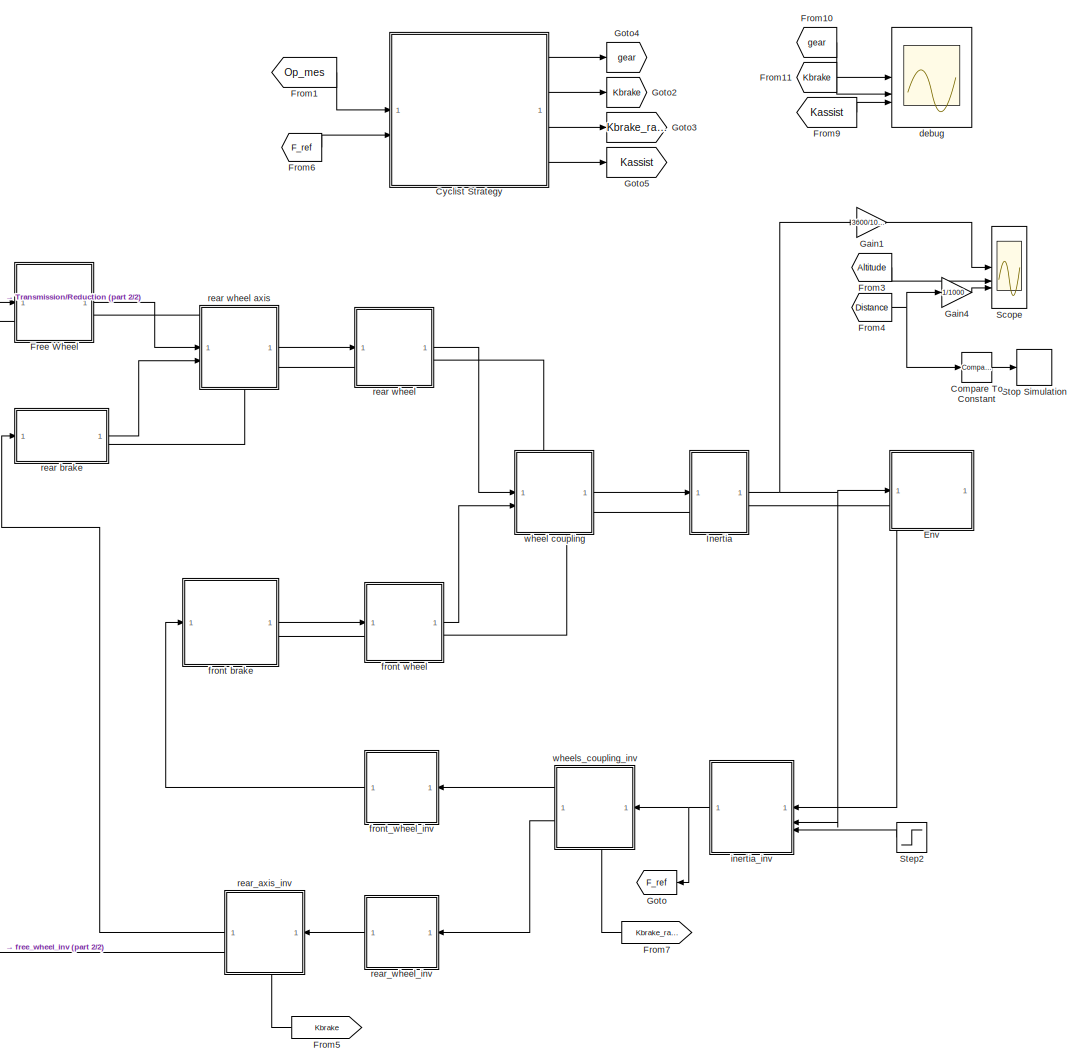
[diagram: root canvas - part 1/2, right side, full height]
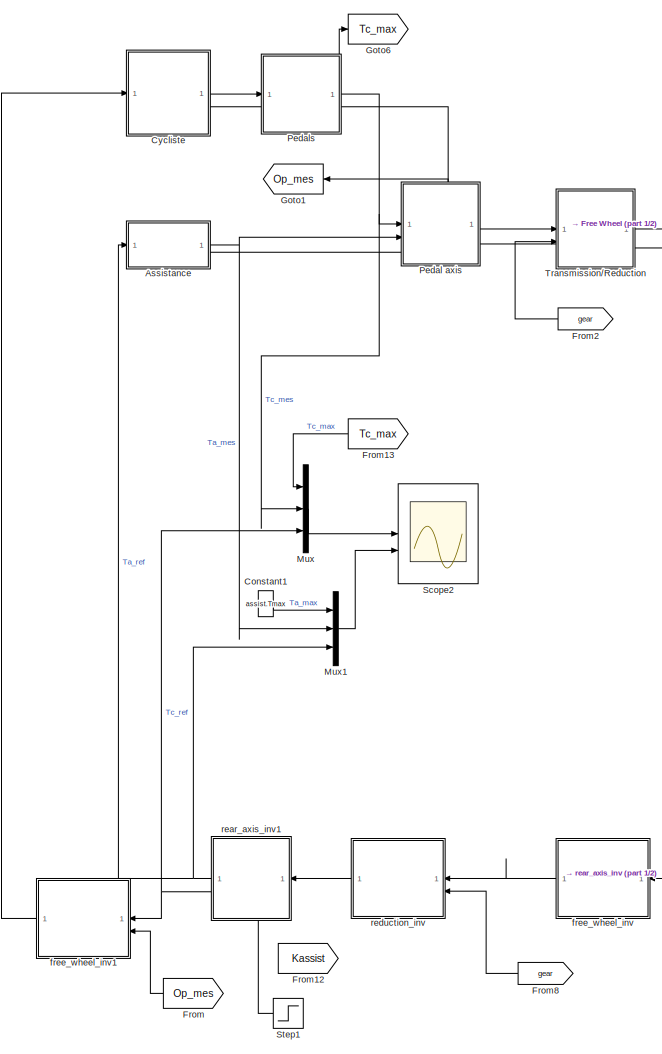
[diagram: root canvas - part 2/2, left side, full height]
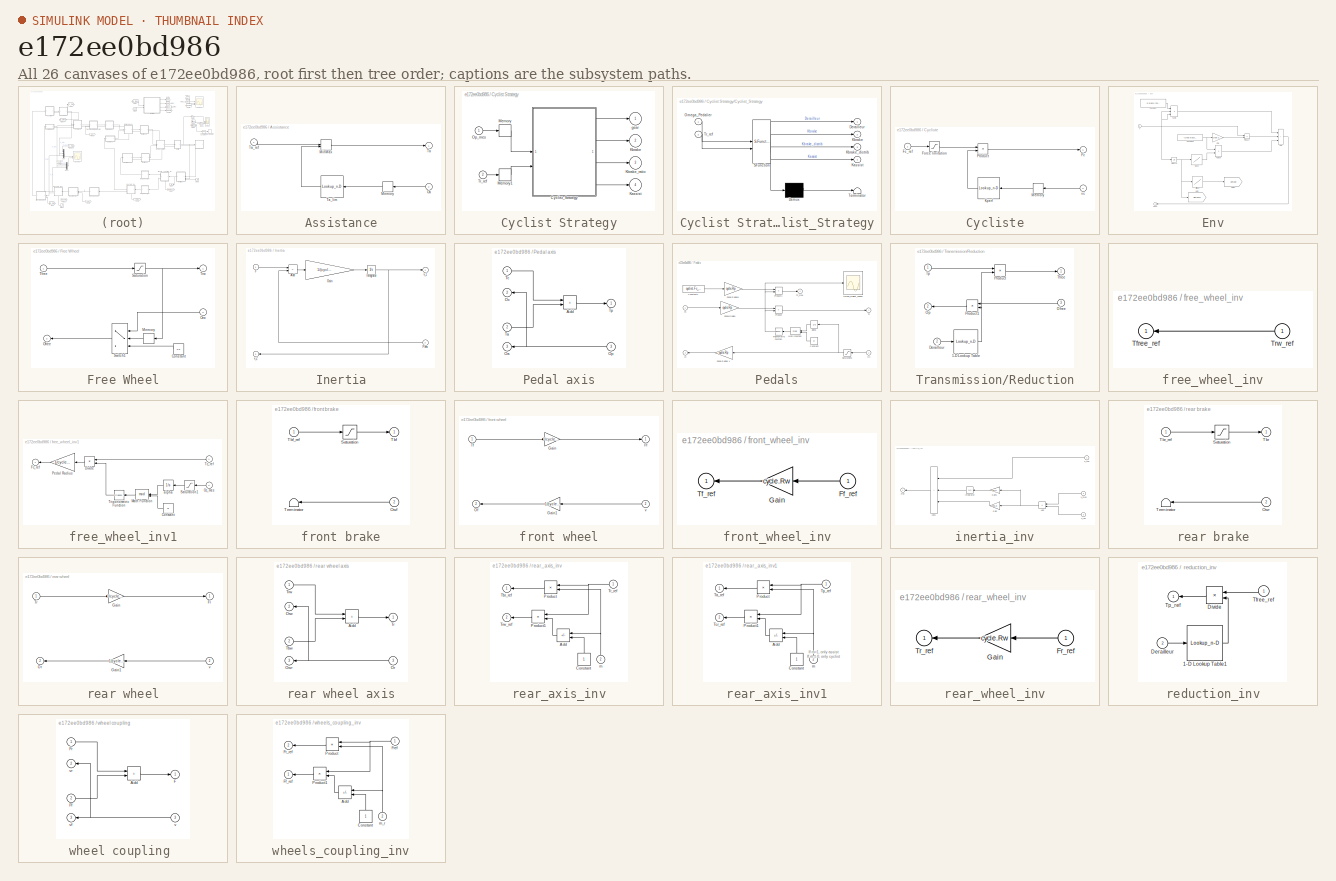
[diagram: thumbnail index - all 26 canvases of the model, root first then tree order]
MODEL slx_e172ee0bd986
KIND model
CONFIG AbsTol = auto
CONFIG EnableMultiTasking = on
CONFIG FixedStep = 1e-3
CONFIG InitFcn = Initialisation
CONFIG MaxStep = 0.01
CONFIG MinStep = auto
CONFIG RelTol = 1e-3
CONFIG SampleTimeConstraint = Unconstrained
CONFIG SolverName = ode45
CONFIG StartTime = 0
CONFIG StopTime = 4000
BLOCK [SubSystem] Assistance
  PortSchema = {"entries":[{"content":{"sides":[{"content":{"connectorIds":["In1"]},"type":"ConnectorPlacement.EquallySpacedRectSide","uuid":"b56ffd92-574d-4607-acc6-16a2c75d443c"},{"content":{"connectorIds":["Out1","In2"],"side":"RIGHT"},"type":"ConnectorPlacement.EquallySpacedRectSide","uuid":"f6ecf908-ce32-455d-b07b-39dcc8c170af"},{"content":{"side":"TOP"},"type":"ConnectorPlacement.EquallySpacedRectSide","uu...<+228ch>  <repeated x4 — deduplicated; at blocks: Assistance, Cycliste, front brake, rear brake>
BLOCK [Memory] Assistance/Memory
  NameLocation = top
BLOCK [MinMax] Assistance/MinMax
  Inputs = 2
BLOCK [Inport] Assistance/Oa
  Port = 2
BLOCK [Outport] Assistance/Ta
  InitialOutput = 0
  VectorParamsAs1DForOutWhenUnconnected = off
BLOCK [Lookup_n-D] Assistance/Ta_lim
  BreakpointsForDimension1 = assist.Op_ref
  InputPortMap = u0
  InternalRulePriority = Speed
  NameLocation = top
  NumberOfTableDimensions = 1
  RndMeth = Simplest
  Table = assist.Ta_lim
BLOCK [Inport] Assistance/Ta_ref
  NameLocation = top
BLOCK [Reference] Compare To Constant  REF=simulink/Logic and Bit
Operations/Compare
To Constant
  SourceBlock = simulink/Logic and Bit\nOperations/Compare\nTo Constant
  SourceType = Compare To Constant
BLOCK [Constant] Constant1
  Value = assist.Tmax
BLOCK [SubSystem] Cyclist Strategy
  NameLocation = top
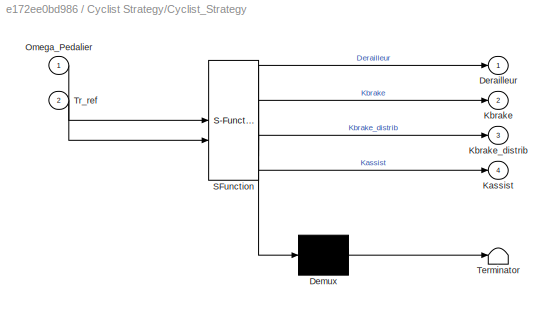
BLOCK [SubSystem] Cyclist Strategy/Cyclist_Strategy
  ErrorFcn = Stateflow.Translate.translate
  PermitHierarchicalResolution = ExplicitOnly
  SFBlockType = MATLAB Function
  TreatAsAtomicUnit = on
BLOCK [Demux] Cyclist Strategy/Cyclist_Strategy/ Demux 
  Outputs = 1
BLOCK [S-Function] Cyclist Strategy/Cyclist_Strategy/ SFunction 
  EnableBusSupport = off
  FunctionName = sf_sfun
  Parameters = assist,cyclist
  PortCounts = [2 5]
  SFcnIsStateOwnerBlock = off
  SFunctionDeploymentMode = off
  Tag = Stateflow S-Function 2
BLOCK [Terminator] Cyclist Strategy/Cyclist_Strategy/ Terminator 
BLOCK [Outport] Cyclist Strategy/Cyclist_Strategy/Derailleur
  VectorParamsAs1DForOutWhenUnconnected = off
BLOCK [Outport] Cyclist Strategy/Cyclist_Strategy/Kassist
  Port = 4
BLOCK [Outport] Cyclist Strategy/Cyclist_Strategy/Kbrake
  Port = 2
  VectorParamsAs1DForOutWhenUnconnected = off
BLOCK [Outport] Cyclist Strategy/Cyclist_Strategy/Kbrake_distrib
  Port = 3
  VectorParamsAs1DForOutWhenUnconnected = off
BLOCK [Inport] Cyclist Strategy/Cyclist_Strategy/Omega_Pedalier
BLOCK [Inport] Cyclist Strategy/Cyclist_Strategy/Tr_ref
  Port = 2
BLOCK [Outport] Cyclist Strategy/Kassist
  Port = 4
BLOCK [Outport] Cyclist Strategy/Kbrake
  Port = 2
BLOCK [Outport] Cyclist Strategy/Kbrake_ratio
  Port = 3
BLOCK [Memory] Cyclist Strategy/Memory
BLOCK [Memory] Cyclist Strategy/Memory1
BLOCK [Inport] Cyclist Strategy/Op_mes
BLOCK [Inport] Cyclist Strategy/Tr_ref
  Port = 2
BLOCK [Outport] Cyclist Strategy/gear
BLOCK [SubSystem] Cycliste
BLOCK [Outport] Cycliste/Fc
  InitialOutput = 0
  VectorParamsAs1DForOutWhenUnconnected = off
BLOCK [Inport] Cycliste/Fc_ref
  NameLocation = top
BLOCK [Saturate] Cycliste/Force limitation
  UpperLimit = cyclist.Fc_max
BLOCK [Lookup_n-D] Cycliste/Kperf
  BreakpointsForDimension1 = cyclist.Vref_ms
  InputPortMap = u0
  InternalRulePriority = Speed
  NameLocation = top
  NumberOfTableDimensions = 1
  RndMeth = Simplest
  Table = cyclist.Kperf
BLOCK [Memory] Cycliste/Memory
  NameLocation = top
BLOCK [Product] Cycliste/Product
BLOCK [Inport] Cycliste/vc
  Port = 2
BLOCK [SubSystem] Env
  PortSchema = {"entries":[{"content":{"sides":[{"content":{"connectorIds":["In1","Out1"]},"type":"ConnectorPlacement.EquallySpacedRectSide","uuid":"efb178e0-fd11-4fb7-a64b-c244e17ad944"},{"content":{"side":"RIGHT"},"type":"ConnectorPlacement.EquallySpacedRectSide","uuid":"048bc3de-e770-4428-8bc0-9ded25c58069"},{"content":{"side":"TOP"},"type":"ConnectorPlacement.EquallySpacedRectSide","uuid":"cc8ec17b-6c54-4d76...<+205ch>
BLOCK [Sum] Env/Add
  IconShape = rectangular
  Inputs = +++
BLOCK [Constant] Env/Constant
  Value = 0.5*env.rho_air*cyclist.Scx
BLOCK [Constant] Env/Constant1
  Value = (cycle.Mass+cyclist.Mass)*env.g
BLOCK [Integrator] Env/Distance
BLOCK [Product] Env/Faero
  Inputs = 3
  RndMeth = Zero
BLOCK [Outport] Env/Fenv
  InitialOutput = 0
  NameLocation = top
  VectorParamsAs1DForOutWhenUnconnected = off
BLOCK [Product] Env/Fgrade
  RndMeth = Zero
BLOCK [Gain] Env/Froll
  Gain = cycle.Crr
BLOCK [Goto] Env/Goto
  GotoTag = Distance
  TagVisibility = global
BLOCK [Goto] Env/Goto2
  GotoTag = Altitude
  TagVisibility = global
BLOCK [Product] Env/Product
  RndMeth = Zero
BLOCK [Lookup] Env/Slope
  InputValues = env.Position
  LookUpMeth = Interpolation-Use End Values
  SaturateOnIntegerOverflow = off
  Table = env.Slope
BLOCK [Lookup] Env/altitude
  InputValues = env.Position
  LookUpMeth = Interpolation-Use End Values
  SaturateOnIntegerOverflow = off
  Table = env.Altitude
BLOCK [Inport] Env/v
BLOCK [SubSystem] Free Wheel
  PortSchema = {"entries":[{"content":{"sides":[{"content":{"connectorIds":["In1","Out2"]},"type":"ConnectorPlacement.EquallySpacedRectSide","uuid":"b9cb5e2e-d323-42b7-849c-39be921832eb"},{"content":{"connectorIds":["Out1","In2"],"side":"RIGHT"},"type":"ConnectorPlacement.EquallySpacedRectSide","uuid":"457911f2-4e07-4896-a1c0-9331a364b989"},{"content":{"side":"TOP"},"type":"ConnectorPlacement.EquallySpacedRectSi...<+235ch>  <repeated x4 — deduplicated; at blocks: Free Wheel, Inertia, front wheel, rear wheel>
BLOCK [Constant] Free Wheel/Constant
  NameLocation = top
  Value = 0.0
BLOCK [Memory] Free Wheel/Memory
  NameLocation = top
BLOCK [Outport] Free Wheel/Ofree
  InitialOutput = 0
  Port = 2
  VectorParamsAs1DForOutWhenUnconnected = off
BLOCK [Inport] Free Wheel/Orw
  Port = 2
BLOCK [Saturate] Free Wheel/Saturation
  LowerLimit = -1e-6
  UpperLimit = Inf
BLOCK [Switch] Free Wheel/Switch1
  InputSameDT = off
  NameLocation = top
  SaturateOnIntegerOverflow = off
BLOCK [Inport] Free Wheel/Tfree
BLOCK [Outport] Free Wheel/Trw
  InitialOutput = 0
  VectorParamsAs1DForOutWhenUnconnected = off
BLOCK [From] From
  GotoTag = Op_mes
BLOCK [From] From1
  GotoTag = Op_mes
BLOCK [From] From10
  GotoTag = gear
  TagVisibility = global
BLOCK [From] From11
  GotoTag = Kbrake
  TagVisibility = global
BLOCK [From] From12
  GotoTag = Kassist
  NameLocation = top
  TagVisibility = global
BLOCK [From] From13
  GotoTag = Tc_max
  NameLocation = top
BLOCK [From] From2
  GotoTag = gear
  NameLocation = top
  TagVisibility = global
BLOCK [From] From3
  GotoTag = Altitude
  TagVisibility = global
BLOCK [From] From4
  GotoTag = Distance
  TagVisibility = global
BLOCK [From] From5
  GotoTag = Kbrake
  NameLocation = top
  TagVisibility = global
BLOCK [From] From6
  GotoTag = F_ref
  TagVisibility = global
BLOCK [From] From7
  GotoTag = Kbrake_ratio
  NameLocation = top
  TagVisibility = global
BLOCK [From] From8
  GotoTag = gear
  NameLocation = top
  TagVisibility = global
BLOCK [From] From9
  GotoTag = Kassist
  TagVisibility = global
BLOCK [Gain] Gain1
  Gain = 3600/1000
BLOCK [Gain] Gain4
  Gain = 1/1000
BLOCK [Goto] Goto
  GotoTag = F_ref
  NameLocation = top
  TagVisibility = global
BLOCK [Goto] Goto1
  GotoTag = Op_mes
  NameLocation = top
BLOCK [Goto] Goto2
  GotoTag = Kbrake
  TagVisibility = global
BLOCK [Goto] Goto3
  GotoTag = Kbrake_ratio
  TagVisibility = global
BLOCK [Goto] Goto4
  GotoTag = gear
  TagVisibility = global
BLOCK [Goto] Goto5
  GotoTag = Kassist
  TagVisibility = global
BLOCK [Goto] Goto6
  GotoTag = Tc_max
BLOCK [SubSystem] Inertia
BLOCK [Sum] Inertia/Add
  IconShape = rectangular
  Inputs = +-
BLOCK [Inport] Inertia/F
BLOCK [Inport] Inertia/Fenv
  Port = 2
BLOCK [Gain] Inertia/Gain
  Gain = 1/(cycle.Mass+cyclist.Mass)
BLOCK [Integrator] Inertia/Integrator
BLOCK [Outport] Inertia/v_1
  InitialOutput = 0
  VectorParamsAs1DForOutWhenUnconnected = off
BLOCK [Outport] Inertia/v_2
  InitialOutput = 0
  Port = 2
  VectorParamsAs1DForOutWhenUnconnected = off
BLOCK [Mux] Mux
  DisplayOption = bar
  Inputs = 3
BLOCK [Mux] Mux1
  DisplayOption = bar
  Inputs = 3
BLOCK [SubSystem] Pedal axis
  PortSchema = {"entries":[{"content":{"sides":[{"content":{"connectorIds":["In1","Out2","In2","Out3"]},"type":"ConnectorPlacement.EquallySpacedRectSide","uuid":"f16583be-6f77-4af9-a4a7-96a07c773c93"},{"content":{"connectorIds":["Out1","In3"],"side":"RIGHT"},"type":"ConnectorPlacement.EquallySpacedRectSide","uuid":"40fed825-d3a5-4924-86df-6135f0ba2178"},{"content":{"side":"TOP"},"type":"ConnectorPlacement.Equall...<+248ch>  <repeated x3 — deduplicated; at blocks: Pedal axis, rear wheel axis, wheel coupling>
BLOCK [Sum] Pedal axis/Add
  IconShape = rectangular
BLOCK [Outport] Pedal axis/Oa
  InitialOutput = 0
  Port = 3
  VectorParamsAs1DForOutWhenUnconnected = off
BLOCK [Outport] Pedal axis/Oc
  InitialOutput = 0
  NameLocation = top
  Port = 2
  VectorParamsAs1DForOutWhenUnconnected = off
BLOCK [Inport] Pedal axis/Op
  Port = 3
BLOCK [Inport] Pedal axis/Ta
  NameLocation = top
  Port = 2
BLOCK [Inport] Pedal axis/Tc
BLOCK [Outport] Pedal axis/Tp
  InitialOutput = 0
  VectorParamsAs1DForOutWhenUnconnected = off
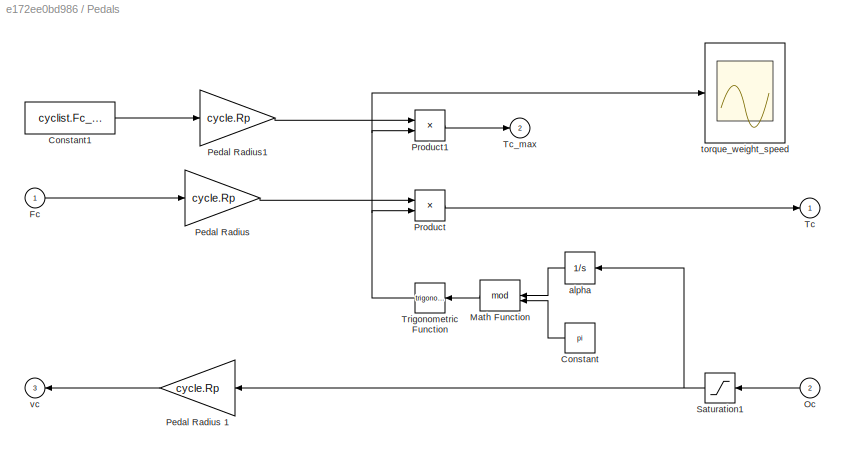
BLOCK [SubSystem] Pedals
  PortSchema = {"entries":[{"content":{"sides":[{"content":{"connectorIds":["In1","Out3"]},"type":"ConnectorPlacement.EquallySpacedRectSide","uuid":"b9cb5e2e-d323-42b7-849c-39be921832eb"},{"content":{"connectorIds":["Out1","In2"],"side":"RIGHT"},"type":"ConnectorPlacement.EquallySpacedRectSide","uuid":"457911f2-4e07-4896-a1c0-9331a364b989"},{"content":{"connectorIds":["Out2"],"side":"TOP"},"type":"ConnectorPlace...<+259ch>
BLOCK [Constant] Pedals/Constant
  NameLocation = top
  Value = pi
BLOCK [Constant] Pedals/Constant1
  Value = cyclist.Fc_max
BLOCK [Inport] Pedals/Fc
BLOCK [Math] Pedals/Math Function
  NameLocation = top
  Operator = mod
  SignedPower = on
BLOCK [Inport] Pedals/Oc
  Port = 2
BLOCK [Gain] Pedals/Pedal Radius
  Gain = cycle.Rp
BLOCK [Gain] Pedals/Pedal Radius 1
  Gain = cycle.Rp
  NameLocation = top
BLOCK [Gain] Pedals/Pedal Radius1
  Gain = cycle.Rp
BLOCK [Product] Pedals/Product
BLOCK [Product] Pedals/Product1
BLOCK [Saturate] Pedals/Saturation1
  LowerLimit = 1e-3
  NameLocation = top
  UpperLimit = Inf
BLOCK [Outport] Pedals/Tc
  InitialOutput = 0
  VectorParamsAs1DForOutWhenUnconnected = off
BLOCK [Outport] Pedals/Tc_max
  InitialOutput = 0
  Port = 2
  VectorParamsAs1DForOutWhenUnconnected = off
BLOCK [Trigonometry] Pedals/Trigonometric Function
  NameLocation = top
BLOCK [Integrator] Pedals/alpha
  InitialCondition = pi/2
  NameLocation = top
BLOCK [Scope] Pedals/torque_weight_speed
  ActiveDisplayYMaximum = 1.3795889081906902
  ActiveDisplayYMinimum = -0.061619463257220453
  DataLoggingDecimateData = on
  DataLoggingDecimation = 1
  DataLoggingSaveFormat = Structure With Time
  DataLoggingVariableName = ScopeData3
  Floating = off
  GraphicalSettings = {"Style":{"BackgroundColor":[0.12941176470588237,0.12941176470588237,0.12941176470588237],"AxesColor":[0.07058823529411765,0.07058823529411765,0.07058823529411765],"LabelsColor":[0.8509803921568627,0.8509803921568627,0.8509803921568627],"PreserveColors":false,"Visible":[true],"LineStyle":["-"],"LineWidth":[1.5],"BarWidth":[0.9],"LineColor":["auto"],"LineFaceAlpha":[1],"LineEdgeAlpha":[1],"Marker":...<+2047ch>
  LayoutDimensionsString = [1,1]
  MultipleDisplayCache = [{"MaxYLimMag":1.1249995702011897,"MaxYLimReal":1.3795889081906902,"MinYLimMag":0,"MinYLimReal":-0.061619463257220453,"PlotAsMagnitudePhase":false,"ShowGrid":true,"ShowLegend":false,"Title":"torque ponderation","YLabel":""}]
  NumInputPorts = 1
  ScopeFrameLocation = window
  Title = torque ponderation
  WasSavedAsWebScope = on
  WindowPosition = [1.000000,1.000000,735.000000,894.000000,]
BLOCK [Outport] Pedals/vc
  InitialOutput = 0
  Port = 3
  VectorParamsAs1DForOutWhenUnconnected = off
BLOCK [Scope] Scope
  ActiveDisplayYMaximum = 17.789458208012235
  ActiveDisplayYMinimum = -1.9766064675569144
  DataLoggingDecimateData = on
  DataLoggingDecimation = 1
  DataLoggingSaveFormat = Structure With Time
  Floating = off
  GraphicalSettings = {"Style":{"BackgroundColor":[0.12941176470588237,0.12941176470588237,0.12941176470588237],"AxesColor":[0.07058823529411765,0.07058823529411765,0.07058823529411765],"LabelsColor":[0.8509803921568627,0.8509803921568627,0.8509803921568627],"PreserveColors":false,"Visible":[true,true,true],"LineStyle":["-","-","-"],"LineWidth":[1.5,1.5,1.5],"BarWidth":[0.9,0.9,0.9],"LineColor":["auto","auto","auto"],"...<+2865ch>
  LayoutDimensionsString = [3 1]
  MultipleDisplayCache = [{"MaxYLimMag":17.789458208012235,"MaxYLimReal":17.789458208012235,"MinYLimMag":0,"MinYLimReal":-1.9766064675569144,"PlotAsMagnitudePhase":false,"ShowGrid":true,"ShowLegend":false,"Title":"Speed (km/h)","YLabel":""},{"MaxYLimMag":583.20936376787563,"MaxYLimReal":583.20936376787563,"MinYLimMag":480.75471057471731,"MinYLimReal":480.75471057471731,"PlotAsMagnitudePhase":false,"ShowGrid":true,"ShowLeg...<+263ch>
  NumInputPorts = 3
  ScopeFrameLocation = window
  Title = Speed (km/h)
  WasSavedAsWebScope = on
  WindowPosition = [736.000000,1.000000,735.000000,894.000000,]
BLOCK [Scope] Scope2
  ActiveDisplayYMaximum = 70.248893061983637
  ActiveDisplayYMinimum = -11.239965352073398
  DataLoggingDecimateData = on
  DataLoggingDecimation = 1
  DataLoggingSaveFormat = Structure With Time
  DataLoggingVariableName = ScopeData2
  Floating = off
  GraphicalSettings = {"AxesScalingProperties":{"AlignXAxis":"Center","AlignYAxis":"Center","AutoScaleXAxisLimits":false,"AxesScaling":"Manual","AxesScalingNumUpdates":10,"ExpandOnly":true,"ScaleAxesLimitsAtStop":false,"XAxisDataRange":100,"YAxisDataRange":80},"DisplayProperties":{"ColorOrder":["auto","auto","auto","auto","auto","auto","auto","auto","auto","auto","auto","auto","auto","auto","auto","auto","auto","auto",...<+2913ch>
  LayoutDimensionsString = [2,1]
  MultipleDisplayCache = [{"MaxYLimMag":234.37500007107386,"MaxYLimReal":70.248893061983637,"MinYLimMag":0,"MinYLimReal":-11.239965352073398,"PlotAsMagnitudePhase":false,"ShowGrid":true,"ShowLegend":true,"Title":"Cyclist torque [Nm]","YLabel":""},{"MaxYLimMag":103.44480786423213,"MaxYLimReal":103.44480786423213,"MinYLimMag":0,"MinYLimReal":-11.49386817223782,"PlotAsMagnitudePhase":false,"ShowGrid":true,"ShowLegend":true,"...<+45ch>
  NumInputPorts = 2
  ScopeFrameLocation = window
  ShowLegend = on
  Title = Cyclist torque [Nm]
  WasSavedAsWebScope = on
  WindowPosition = [1.000000,1.000000,735.000000,894.000000,]
BLOCK [Step] Step1
  After = 0.5
  NameLocation = top
  SampleTime = 0
  Time = 10
BLOCK [Step] Step2
  After = 15000/3600
  Before = 0/3600
  NameLocation = top
  SampleTime = 0
  Time = 5.0
BLOCK [Stop] Stop Simulation
BLOCK [SubSystem] Transmission//Reduction
  PortSchema = {"entries":[{"content":{"sides":[{"content":{"connectorIds":["In1","Out2","In2"]},"type":"ConnectorPlacement.EquallySpacedRectSide","uuid":"984053de-e79d-49a0-956b-2805f1bca603"},{"content":{"connectorIds":["Out1","In3"],"side":"RIGHT"},"type":"ConnectorPlacement.EquallySpacedRectSide","uuid":"4ee9bc35-ba8a-4ab9-8456-8b7f51d0f2b4"},{"content":{"side":"TOP"},"type":"ConnectorPlacement.EquallySpaced...<+241ch>
BLOCK [Lookup_n-D] Transmission//Reduction/1-D Lookup Table
  BreakpointsForDimension1 = 1:1:10
  InputPortMap = u0
  InternalRulePriority = Speed
  NumberOfTableDimensions = 1
  RndMeth = Simplest
  Table = cycle.Speed
BLOCK [Inport] Transmission//Reduction/Derailleur
  NameLocation = top
  Port = 2
BLOCK [Inport] Transmission//Reduction/Ofree
  Port = 3
BLOCK [Outport] Transmission//Reduction/Op
  InitialOutput = 0
  Port = 2
  VectorParamsAs1DForOutWhenUnconnected = off
BLOCK [Product] Transmission//Reduction/Product
  RndMeth = Zero
BLOCK [Product] Transmission//Reduction/Product1
  NameLocation = top
  RndMeth = Zero
BLOCK [Outport] Transmission//Reduction/Tfree
  InitialOutput = 0
  VectorParamsAs1DForOutWhenUnconnected = off
BLOCK [Inport] Transmission//Reduction/Tp
BLOCK [Scope] debug
  ActiveDisplayString = 3
  ActiveDisplayYMaximum = 0.708143213221581
  ActiveDisplayYMinimum = -0.078682579246842327
  DataLoggingDecimateData = on
  DataLoggingDecimation = 1
  DataLoggingSaveFormat = Structure With Time
  DataLoggingVariableName = ScopeData1
  Floating = off
  GraphicalSettings = {"Style":{"BackgroundColor":[0.12941176470588237,0.12941176470588237,0.12941176470588237],"AxesColor":[0.07058823529411765,0.07058823529411765,0.07058823529411765],"LabelsColor":[0.8509803921568627,0.8509803921568627,0.8509803921568627],"PreserveColors":false,"Visible":[true,true,true],"LineStyle":["-","-","-"],"LineWidth":[1.5,1.5,1.5],"BarWidth":[0.9,0.9,0.9],"LineColor":["auto","auto","auto"],"...<+2838ch>
  LayoutDimensionsString = [3,1]
  MultipleDisplayCache = [{"MaxYLimMag":7.75,"MaxYLimReal":7.75,"MinYLimMag":0.25000000000000022,"MinYLimReal":0.25000000000000022,"PlotAsMagnitudePhase":false,"ShowGrid":true,"ShowLegend":false,"Title":"Gear (1-10)","YLabel":""},{"MaxYLimMag":1.125,"MaxYLimReal":1.125,"MinYLimMag":0,"MinYLimReal":-0.12499999999999997,"PlotAsMagnitudePhase":false,"ShowGrid":true,"ShowLegend":false,"Title":"Breaking?","YLabel":""},{"MaxYLi...<+209ch>
  NumInputPorts = 3
  ScopeFrameLocation = window
  WasSavedAsWebScope = on
  WindowPosition = [-1507.000000,14.000000,1280.000000,894.000000,]
BLOCK [SubSystem] free_wheel_inv
  AncestorBlock = simulink/SMC/Inversion EC\navec mesure
BLOCK [Outport] free_wheel_inv/Tfree_ref
  InitialOutput = 0
BLOCK [Inport] free_wheel_inv/Trw_ref
BLOCK [SubSystem] free_wheel_inv1
  AncestorBlock = simulink/SMC/Inversion EC\navec mesure
BLOCK [Constant] free_wheel_inv1/Constant
  NameLocation = top
  Value = pi
BLOCK [Product] free_wheel_inv1/Divide
  Inputs = */
  NameLocation = top
BLOCK [Outport] free_wheel_inv1/Fc_ref
  InitialOutput = 0
BLOCK [Math] free_wheel_inv1/Math Function
  NameLocation = top
  Operator = mod
  SignedPower = on
BLOCK [Inport] free_wheel_inv1/Oc_mes
  Port = 2
BLOCK [Gain] free_wheel_inv1/Pedal Radius
  Gain = 1/cycle.Rp
  NameLocation = top
BLOCK [Saturate] free_wheel_inv1/Saturation1
  LowerLimit = 1e-3
  NameLocation = top
  UpperLimit = Inf
BLOCK [Inport] free_wheel_inv1/Tc_ref
BLOCK [Trigonometry] free_wheel_inv1/Trigonometric Function
  NameLocation = top
BLOCK [Integrator] free_wheel_inv1/alpha
  InitialCondition = pi/2
  NameLocation = top
BLOCK [SubSystem] front brake
BLOCK [Inport] front brake/Owf
  NameLocation = top
  Port = 2
BLOCK [Saturate] front brake/Saturation
  LowerLimit = -1e3
  UpperLimit = 0
BLOCK [Outport] front brake/Tbf
  InitialOutput = 0
  VectorParamsAs1DForOutWhenUnconnected = off
BLOCK [Inport] front brake/Tbf_ref
BLOCK [Terminator] front brake/Terminator
  NameLocation = top
BLOCK [SubSystem] front wheel
BLOCK [Outport] front wheel/Ff
  InitialOutput = 0
  VectorParamsAs1DForOutWhenUnconnected = off
BLOCK [Gain] front wheel/Gain
  Gain = 1/cycle.Rw
BLOCK [Gain] front wheel/Gain1
  Gain = 1/cycle.Rw
  NameLocation = top
BLOCK [Outport] front wheel/Of
  InitialOutput = 0
  Port = 2
  VectorParamsAs1DForOutWhenUnconnected = off
BLOCK [Inport] front wheel/Tf
BLOCK [Inport] front wheel/v
  Port = 2
BLOCK [SubSystem] front_wheel_inv
  AncestorBlock = simulink/SMC/Inversion EC\navec mesure
BLOCK [Inport] front_wheel_inv/Ff_ref
BLOCK [Gain] front_wheel_inv/Gain
  Gain = cycle.Rw
  NameLocation = top
BLOCK [Outport] front_wheel_inv/Tf_ref
  InitialOutput = 0
BLOCK [SubSystem] inertia_inv
  NameLocation = top
BLOCK [Sum] inertia_inv/Add
  IconShape = rectangular
  Inputs = -+
  NameLocation = top
BLOCK [Sum] inertia_inv/Add1
  IconShape = rectangular
  Inputs = +++
  NameLocation = top
BLOCK [Inport] inertia_inv/F_res
  NameLocation = top
BLOCK [Outport] inertia_inv/Fref
  InitialOutput = 0
  VectorParamsAs1DForOutWhenUnconnected = off
BLOCK [Gain] inertia_inv/Gain
  Gain = 200.0
  NameLocation = top
BLOCK [Gain] inertia_inv/Gain1
  Gain = 10.0
  NameLocation = top
BLOCK [Integrator] inertia_inv/Integrator
  LimitOutput = on
  LowerSaturationLimit = -50
  NameLocation = top
  UpperSaturationLimit = 50
BLOCK [Inport] inertia_inv/V_mes
  NameLocation = top
  Port = 2
BLOCK [Inport] inertia_inv/V_ref
  Port = 3
BLOCK [SubSystem] rear brake
BLOCK [Inport] rear brake/Owr
  NameLocation = top
  Port = 2
BLOCK [Saturate] rear brake/Saturation
  LowerLimit = -1e3
  UpperLimit = 0
BLOCK [Outport] rear brake/Tbr
  InitialOutput = 0
  VectorParamsAs1DForOutWhenUnconnected = off
BLOCK [Inport] rear brake/Tbr_ref
BLOCK [Terminator] rear brake/Terminator
  NameLocation = top
BLOCK [SubSystem] rear wheel
BLOCK [SubSystem] rear wheel axis
BLOCK [Sum] rear wheel axis/Add
  IconShape = rectangular
BLOCK [Inport] rear wheel axis/Or
  Port = 3
BLOCK [Outport] rear wheel axis/Orw
  InitialOutput = 0
  NameLocation = top
  Port = 2
  VectorParamsAs1DForOutWhenUnconnected = off
BLOCK [Outport] rear wheel axis/Owr
  InitialOutput = 0
  Port = 3
  VectorParamsAs1DForOutWhenUnconnected = off
BLOCK [Inport] rear wheel axis/Tbw
  NameLocation = top
  Port = 2
BLOCK [Outport] rear wheel axis/Tr
  InitialOutput = 0
  VectorParamsAs1DForOutWhenUnconnected = off
BLOCK [Inport] rear wheel axis/Trw
BLOCK [Outport] rear wheel/Fr
  InitialOutput = 0
  VectorParamsAs1DForOutWhenUnconnected = off
BLOCK [Gain] rear wheel/Gain
  Gain = 1/cycle.Rw
BLOCK [Gain] rear wheel/Gain1
  Gain = 1/cycle.Rw
  NameLocation = top
BLOCK [Outport] rear wheel/Or
  InitialOutput = 0
  Port = 2
  VectorParamsAs1DForOutWhenUnconnected = off
BLOCK [Inport] rear wheel/Tr
BLOCK [Inport] rear wheel/v
  Port = 2
BLOCK [SubSystem] rear_axis_inv
  NameLocation = top
  PortSchema = {"entries":[{"content":{"sides":[{"content":{"connectorIds":["In1"]},"type":"ConnectorPlacement.EquallySpacedRectSide","uuid":"b9cb5e2e-d323-42b7-849c-39be921832eb"},{"content":{"connectorIds":["Out1","Out2"],"side":"RIGHT"},"type":"ConnectorPlacement.EquallySpacedRectSide","uuid":"457911f2-4e07-4896-a1c0-9331a364b989"},{"content":{"side":"TOP"},"type":"ConnectorPlacement.EquallySpacedRectSide","u...<+378ch>  <repeated x3 — deduplicated; at blocks: rear_axis_inv, rear_axis_inv1, wheels_coupling_inv>
BLOCK [Sum] rear_axis_inv/Add
  IconShape = rectangular
  Inputs = -+
  NameLocation = top
BLOCK [Constant] rear_axis_inv/Constant
  NameLocation = right
BLOCK [Product] rear_axis_inv/Product
  NameLocation = top
BLOCK [Product] rear_axis_inv/Product1
  NameLocation = top
BLOCK [Outport] rear_axis_inv/Tbr_ref
  InitialOutput = 0
BLOCK [Inport] rear_axis_inv/Tr_ref
BLOCK [Outport] rear_axis_inv/Trw_ref
  InitialOutput = 0
  Port = 2
BLOCK [Inport] rear_axis_inv/m
  Port = 2
BLOCK [SubSystem] rear_axis_inv1
  NameLocation = top
BLOCK [Sum] rear_axis_inv1/Add
  IconShape = rectangular
  Inputs = -+
  NameLocation = top
BLOCK [Constant] rear_axis_inv1/Constant
  NameLocation = right
BLOCK [Product] rear_axis_inv1/Product
  NameLocation = top
BLOCK [Product] rear_axis_inv1/Product1
  NameLocation = top
BLOCK [Outport] rear_axis_inv1/Ta_ref
  InitialOutput = 0
BLOCK [Outport] rear_axis_inv1/Tcr_ref
  InitialOutput = 0
  Port = 2
BLOCK [Inport] rear_axis_inv1/Tp_ref
BLOCK [Inport] rear_axis_inv1/m
  Port = 2
BLOCK [SubSystem] rear_wheel_inv
  AncestorBlock = simulink/SMC/Inversion EC\navec mesure
BLOCK [Inport] rear_wheel_inv/Fr_ref
BLOCK [Gain] rear_wheel_inv/Gain
  Gain = cycle.Rw
  NameLocation = top
BLOCK [Outport] rear_wheel_inv/Tr_ref
  InitialOutput = 0
BLOCK [SubSystem] reduction_inv
  AncestorBlock = simulink/SMC/Inversion EC\navec mesure
BLOCK [Lookup_n-D] reduction_inv/1-D Lookup Table1
  BreakpointsForDimension1 = 1:1:10
  InputPortMap = u0
  InternalRulePriority = Speed
  NumberOfTableDimensions = 1
  RndMeth = Simplest
  Table = cycle.Speed
BLOCK [Inport] reduction_inv/Derailleur
  NameLocation = top
  Port = 2
BLOCK [Product] reduction_inv/Divide
  Inputs = */
  NameLocation = top
BLOCK [Inport] reduction_inv/Tfree_ref
BLOCK [Outport] reduction_inv/Tp_ref
  InitialOutput = 0
BLOCK [SubSystem] wheel coupling 
BLOCK [Sum] wheel coupling /Add
  IconShape = rectangular
BLOCK [Outport] wheel coupling /F
  InitialOutput = 0
  VectorParamsAs1DForOutWhenUnconnected = off
BLOCK [Inport] wheel coupling /Ff
  NameLocation = top
  Port = 2
BLOCK [Inport] wheel coupling /Fr
BLOCK [Inport] wheel coupling /v
  Port = 3
BLOCK [Outport] wheel coupling /vf
  InitialOutput = 0
  Port = 3
  VectorParamsAs1DForOutWhenUnconnected = off
BLOCK [Outport] wheel coupling /vr
  InitialOutput = 0
  NameLocation = top
  Port = 2
  VectorParamsAs1DForOutWhenUnconnected = off
BLOCK [SubSystem] wheels_coupling_inv
  NameLocation = top
BLOCK [Sum] wheels_coupling_inv/Add
  IconShape = rectangular
  Inputs = -+
  NameLocation = top
BLOCK [Constant] wheels_coupling_inv/Constant
  NameLocation = right
BLOCK [Outport] wheels_coupling_inv/Ff_ref
  InitialOutput = 0
BLOCK [Outport] wheels_coupling_inv/Fr_ref
  InitialOutput = 0
  Port = 2
BLOCK [Inport] wheels_coupling_inv/Fref
BLOCK [Product] wheels_coupling_inv/Product
  NameLocation = top
BLOCK [Product] wheels_coupling_inv/Product1
  NameLocation = top
BLOCK [Inport] wheels_coupling_inv/m_r
  Port = 2
ANNOTATION rear_axis_inv1: If m=1, only assist If m = 0, only cyclist
LINE Assistance/Memory:1 -> Assistance/Ta_lim:1
LINE Assistance/MinMax:1 -> Assistance/Ta:1
LINE Assistance/Oa:1 -> Assistance/Memory:1
LINE Assistance/Ta_lim:1 -> Assistance/MinMax:2
LINE Assistance/Ta_ref:1 -> Assistance/MinMax:1
NET Assistance:1 -> Mux1:2, Pedal axis:2
LINE Compare To Constant:1 -> Stop Simulation:1
LINE Constant1:1 -> Mux1:1
LINE Cyclist Strategy/Cyclist_Strategy:1 -> Cyclist Strategy/gear:1
LINE Cyclist Strategy/Cyclist_Strategy:2 -> Cyclist Strategy/Kbrake:1
LINE Cyclist Strategy/Cyclist_Strategy:3 -> Cyclist Strategy/Kbrake_ratio:1
LINE Cyclist Strategy/Cyclist_Strategy:4 -> Cyclist Strategy/Kassist:1
LINE Cyclist Strategy/Memory1:1 -> Cyclist Strategy/Cyclist_Strategy:2
LINE Cyclist Strategy/Memory:1 -> Cyclist Strategy/Cyclist_Strategy:1
LINE Cyclist Strategy/Op_mes:1 -> Cyclist Strategy/Memory:1
LINE Cyclist Strategy/Tr_ref:1 -> Cyclist Strategy/Memory1:1
LINE Cyclist Strategy:1 -> Goto4:1
LINE Cyclist Strategy:2 -> Goto2:1
LINE Cyclist Strategy:3 -> Goto3:1
LINE Cyclist Strategy:4 -> Goto5:1
LINE Cycliste/Fc_ref:1 -> Cycliste/Force limitation:1
LINE Cycliste/Force limitation:1 -> Cycliste/Product:1
LINE Cycliste/Kperf:1 -> Cycliste/Product:2
LINE Cycliste/Memory:1 -> Cycliste/Kperf:1
LINE Cycliste/Product:1 -> Cycliste/Fc:1
LINE Cycliste/vc:1 -> Cycliste/Memory:1
LINE Cycliste:1 -> Pedals:1
LINE Env/Add:1 -> Env/Fenv:1
NET Env/Constant1:1 -> Env/Fgrade:1, Env/Froll:1
LINE Env/Constant:1 -> Env/Faero:1
NET Env/Distance:1 -> Env/Goto:1, Env/Slope:1, Env/altitude:1
LINE Env/Faero:1 -> Env/Add:1
LINE Env/Fgrade:1 -> Env/Add:3
LINE Env/Froll:1 -> Env/Product:2
LINE Env/Product:1 -> Env/Add:2
LINE Env/Slope:1 -> Env/Fgrade:2
LINE Env/altitude:1 -> Env/Goto2:1
NET Env/v:1 -> Env/Distance:1, Env/Faero:2, Env/Faero:3, Env/Product:1
NET Env:1 -> Inertia:2, inertia_inv:1
LINE Free Wheel/Constant:1 -> Free Wheel/Switch1:3
LINE Free Wheel/Memory:1 -> Free Wheel/Switch1:2
LINE Free Wheel/Orw:1 -> Free Wheel/Switch1:1
NET Free Wheel/Saturation:1 -> Free Wheel/Memory:1, Free Wheel/Trw:1
LINE Free Wheel/Switch1:1 -> Free Wheel/Ofree:1
LINE Free Wheel/Tfree:1 -> Free Wheel/Saturation:1
LINE Free Wheel:1 -> rear wheel axis:1
LINE Free Wheel:2 -> Transmission//Reduction:3
LINE From10:1 -> debug:1
LINE From11:1 -> debug:2
LINE From13:1 -> Mux:1
LINE From1:1 -> Cyclist Strategy:1
LINE From2:1 -> Transmission//Reduction:2
LINE From3:1 -> Scope:2
NET From4:1 -> Compare To Constant:1, Gain4:1
LINE From5:1 -> rear_axis_inv:2
LINE From6:1 -> Cyclist Strategy:2
LINE From7:1 -> wheels_coupling_inv:2
LINE From8:1 -> reduction_inv:2
LINE From9:1 -> debug:3
LINE From:1 -> free_wheel_inv1:2
LINE Gain1:1 -> Scope:1
LINE Gain4:1 -> Scope:3
LINE Inertia/Add:1 -> Inertia/Gain:1
LINE Inertia/F:1 -> Inertia/Add:1
LINE Inertia/Fenv:1 -> Inertia/Add:2
LINE Inertia/Gain:1 -> Inertia/Integrator:1
NET Inertia/Integrator:1 -> Inertia/v_1:1, Inertia/v_2:1
NET Inertia:1 -> Env:1, Gain1:1, inertia_inv:2
LINE Inertia:2 -> wheel coupling :3
LINE Mux1:1 -> Scope2:2
LINE Mux:1 -> Scope2:1
LINE Pedal axis/Add:1 -> Pedal axis/Tp:1
NET Pedal axis/Op:1 -> Pedal axis/Oa:1, Pedal axis/Oc:1
LINE Pedal axis/Ta:1 -> Pedal axis/Add:2
LINE Pedal axis/Tc:1 -> Pedal axis/Add:1
LINE Pedal axis:1 -> Transmission//Reduction:1
NET Pedal axis:2 -> Goto1:1, Pedals:2
LINE Pedal axis:3 -> Assistance:2
LINE Pedals/Constant1:1 -> Pedals/Pedal Radius1:1
LINE Pedals/Constant:1 -> Pedals/Math Function:2
LINE Pedals/Fc:1 -> Pedals/Pedal Radius:1
LINE Pedals/Math Function:1 -> Pedals/Trigonometric Function:1
LINE Pedals/Oc:1 -> Pedals/Saturation1:1
LINE Pedals/Pedal Radius 1:1 -> Pedals/vc:1
LINE Pedals/Pedal Radius1:1 -> Pedals/Product1:1
LINE Pedals/Pedal Radius:1 -> Pedals/Product:1
LINE Pedals/Product1:1 -> Pedals/Tc_max:1
LINE Pedals/Product:1 -> Pedals/Tc:1
NET Pedals/Saturation1:1 -> Pedals/Pedal Radius 1:1, Pedals/alpha:1
NET Pedals/Trigonometric Function:1 -> Pedals/Product1:2, Pedals/Product:2, Pedals/torque_weight_speed:1
LINE Pedals/alpha:1 -> Pedals/Math Function:1
NET Pedals:1 -> Mux:2, Pedal axis:1
LINE Pedals:2 -> Goto6:1
LINE Pedals:3 -> Cycliste:2
LINE Step1:1 -> rear_axis_inv1:2
LINE Step2:1 -> inertia_inv:3
NET Transmission//Reduction/1-D Lookup Table:1 -> Transmission//Reduction/Product1:2, Transmission//Reduction/Product:2
LINE Transmission//Reduction/Derailleur:1 -> Transmission//Reduction/1-D Lookup Table:1
LINE Transmission//Reduction/Ofree:1 -> Transmission//Reduction/Product1:1
LINE Transmission//Reduction/Product1:1 -> Transmission//Reduction/Op:1
LINE Transmission//Reduction/Product:1 -> Transmission//Reduction/Tfree:1
LINE Transmission//Reduction/Tp:1 -> Transmission//Reduction/Product:1
LINE Transmission//Reduction:1 -> Free Wheel:1
LINE Transmission//Reduction:2 -> Pedal axis:3
LINE free_wheel_inv1:1 -> Cycliste:1
LINE free_wheel_inv:1 -> reduction_inv:1
LINE front brake/Owf:1 -> front brake/Terminator:1
LINE front brake/Saturation:1 -> front brake/Tbf:1
LINE front brake/Tbf_ref:1 -> front brake/Saturation:1
LINE front brake:1 -> front wheel:1
LINE front wheel/Gain1:1 -> front wheel/Of:1
LINE front wheel/Gain:1 -> front wheel/Ff:1
LINE front wheel/Tf:1 -> front wheel/Gain:1
LINE front wheel/v:1 -> front wheel/Gain1:1
LINE front wheel:1 -> wheel coupling :2
LINE front wheel:2 -> front brake:2
LINE front_wheel_inv:1 -> front brake:1
LINE inertia_inv/Add1:1 -> inertia_inv/Fref:1
NET inertia_inv/Add:1 -> inertia_inv/Gain1:1, inertia_inv/Gain:1
LINE inertia_inv/F_res:1 -> inertia_inv/Add1:1
LINE inertia_inv/Gain1:1 -> inertia_inv/Integrator:1
LINE inertia_inv/Gain:1 -> inertia_inv/Add1:3
LINE inertia_inv/Integrator:1 -> inertia_inv/Add1:2
LINE inertia_inv/V_mes:1 -> inertia_inv/Add:1
LINE inertia_inv/V_ref:1 -> inertia_inv/Add:2
NET inertia_inv:1 -> Goto:1, wheels_coupling_inv:1
LINE rear brake/Owr:1 -> rear brake/Terminator:1
LINE rear brake/Saturation:1 -> rear brake/Tbr:1
LINE rear brake/Tbr_ref:1 -> rear brake/Saturation:1
LINE rear brake:1 -> rear wheel axis:2
LINE rear wheel axis/Add:1 -> rear wheel axis/Tr:1
NET rear wheel axis/Or:1 -> rear wheel axis/Orw:1, rear wheel axis/Owr:1
LINE rear wheel axis/Tbw:1 -> rear wheel axis/Add:2
LINE rear wheel axis/Trw:1 -> rear wheel axis/Add:1
LINE rear wheel axis:1 -> rear wheel:1
LINE rear wheel axis:2 -> Free Wheel:2
LINE rear wheel axis:3 -> rear brake:2
LINE rear wheel/Gain1:1 -> rear wheel/Or:1
LINE rear wheel/Gain:1 -> rear wheel/Fr:1
LINE rear wheel/Tr:1 -> rear wheel/Gain:1
LINE rear wheel/v:1 -> rear wheel/Gain1:1
LINE rear wheel:1 -> wheel coupling :1
LINE rear wheel:2 -> rear wheel axis:3
LINE rear_axis_inv/Add:1 -> rear_axis_inv/Product1:2
LINE rear_axis_inv/Constant:1 -> rear_axis_inv/Add:2
LINE rear_axis_inv/Product1:1 -> rear_axis_inv/Trw_ref:1
LINE rear_axis_inv/Product:1 -> rear_axis_inv/Tbr_ref:1
NET rear_axis_inv/Tr_ref:1 -> rear_axis_inv/Product1:1, rear_axis_inv/Product:1
NET rear_axis_inv/m:1 -> rear_axis_inv/Add:1, rear_axis_inv/Product:2
LINE rear_axis_inv1/Add:1 -> rear_axis_inv1/Product1:2
LINE rear_axis_inv1/Constant:1 -> rear_axis_inv1/Add:2
LINE rear_axis_inv1/Product1:1 -> rear_axis_inv1/Tcr_ref:1
LINE rear_axis_inv1/Product:1 -> rear_axis_inv1/Ta_ref:1
NET rear_axis_inv1/Tp_ref:1 -> rear_axis_inv1/Product1:1, rear_axis_inv1/Product:1
NET rear_axis_inv1/m:1 -> rear_axis_inv1/Add:1, rear_axis_inv1/Product:2
NET rear_axis_inv1:1 -> Assistance:1, Mux1:3
NET rear_axis_inv1:2 -> Mux:3, free_wheel_inv1:1
LINE rear_axis_inv:1 -> rear brake:1
LINE rear_axis_inv:2 -> free_wheel_inv:1
LINE rear_wheel_inv:1 -> rear_axis_inv:1
LINE reduction_inv:1 -> rear_axis_inv1:1
LINE wheel coupling /Add:1 -> wheel coupling /F:1
LINE wheel coupling /Ff:1 -> wheel coupling /Add:2
LINE wheel coupling /Fr:1 -> wheel coupling /Add:1
NET wheel coupling /v:1 -> wheel coupling /vf:1, wheel coupling /vr:1
LINE wheel coupling :1 -> Inertia:1
LINE wheel coupling :2 -> rear wheel:2
LINE wheel coupling :3 -> front wheel:2
LINE wheels_coupling_inv/Add:1 -> wheels_coupling_inv/Product1:2
LINE wheels_coupling_inv/Constant:1 -> wheels_coupling_inv/Add:2
NET wheels_coupling_inv/Fref:1 -> wheels_coupling_inv/Product1:1, wheels_coupling_inv/Product:1
LINE wheels_coupling_inv/Product1:1 -> wheels_coupling_inv/Ff_ref:1
LINE wheels_coupling_inv/Product:1 -> wheels_coupling_inv/Fr_ref:1
NET wheels_coupling_inv/m_r:1 -> wheels_coupling_inv/Add:1, wheels_coupling_inv/Product:2
LINE wheels_coupling_inv:1 -> front_wheel_inv:1
LINE wheels_coupling_inv:2 -> rear_wheel_inv:1
note: NET lines group one-source signal fan-out (src -> all destinations, sorted); 1:1 wires keep LINE
CHART Cyclist Strategy/Cyclist_Strategy states=1 transitions=1
  STATE_LABEL 'eML_blk_kernel()'
  STATE_LABEL 'SCRIPT:\nfunction [Derailleur,Kbrake,Kbrake_distrib,Kassist] = fcn(Omega_Pedalier,Tr_ref, cyclist, assist)\n\n% outputs\n%   Derailleur: current gear\n%   Kbrake: wether to brake or not\n%   Kbrake_distrib: ratio between front and back braking torques\n\n% does this allow to store variable from one iteration to another??\npersistent Derailleur_ref\n\nif isempty(Derailleur_ref)\n    Derailleur_ref = 1;\nend\n\n%%...<+610ch>'
CHART  states=0 transitions=0
